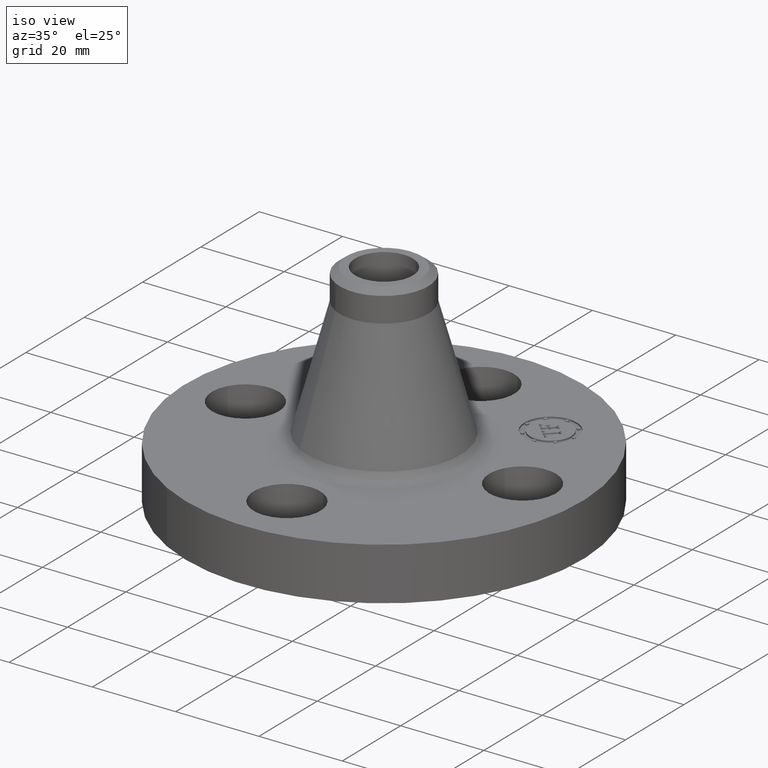
[diagram: clean part render]
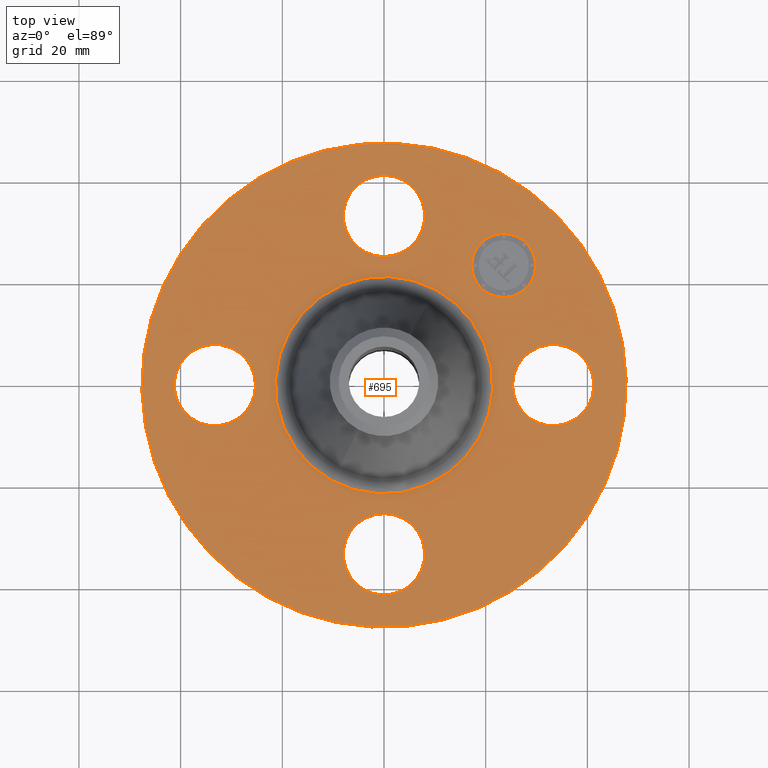
[diagram: tour spotlight — one face highlighted and labeled with its STEP entity id]
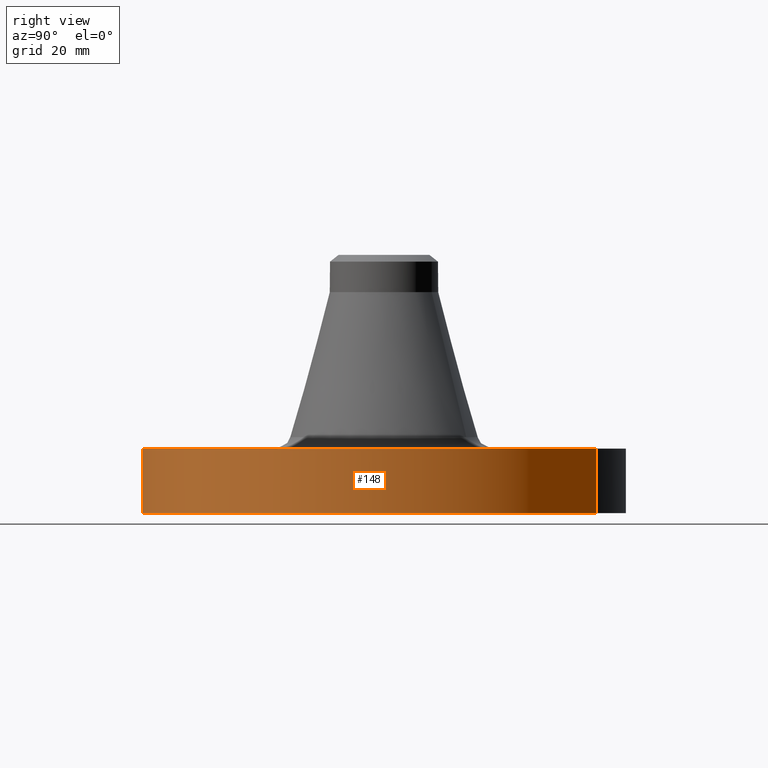
[diagram: tour spotlight — one face highlighted and labeled with its STEP entity id]
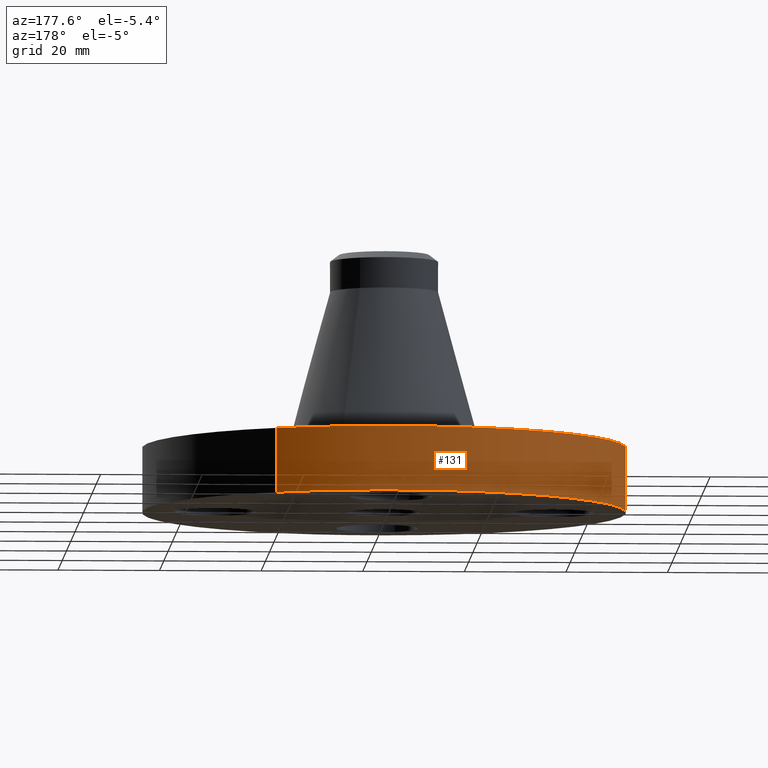
[diagram: tour spotlight — one face highlighted and labeled with its STEP entity id]
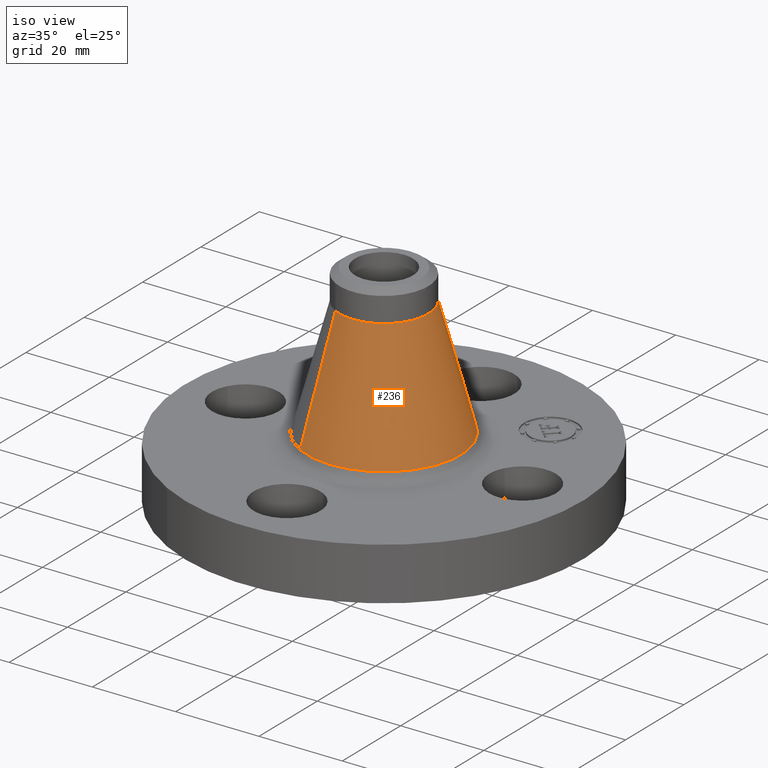
[diagram: tour spotlight — one face highlighted and labeled with its STEP entity id]
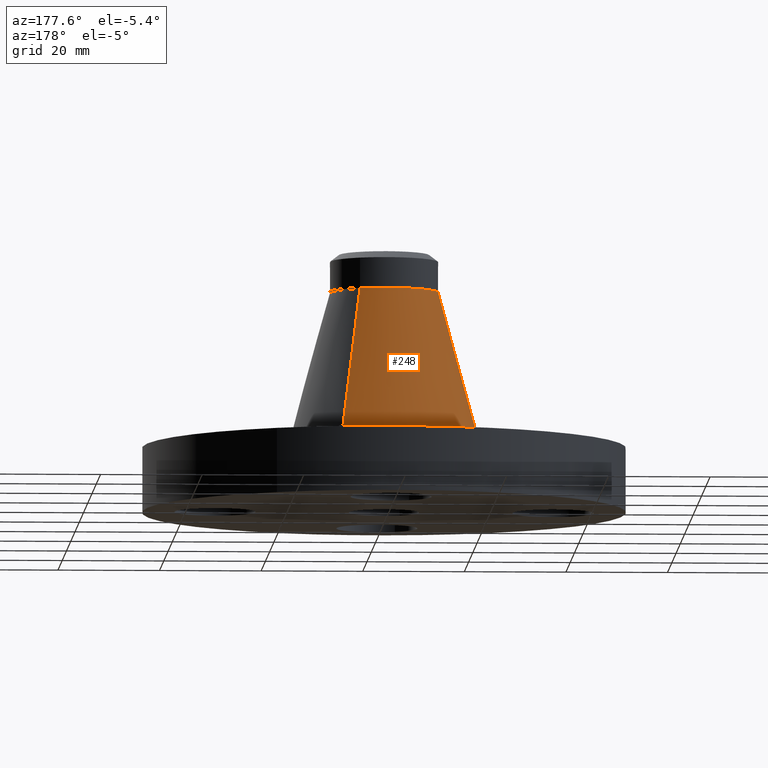
[diagram: tour spotlight — one face highlighted and labeled with its STEP entity id]
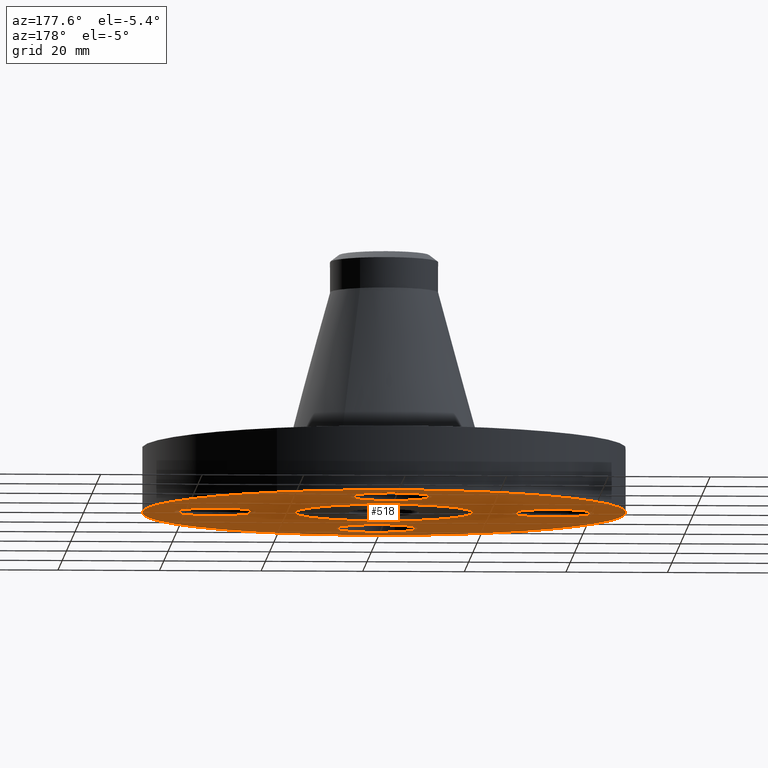
[diagram: tour spotlight — one face highlighted and labeled with its STEP entity id]
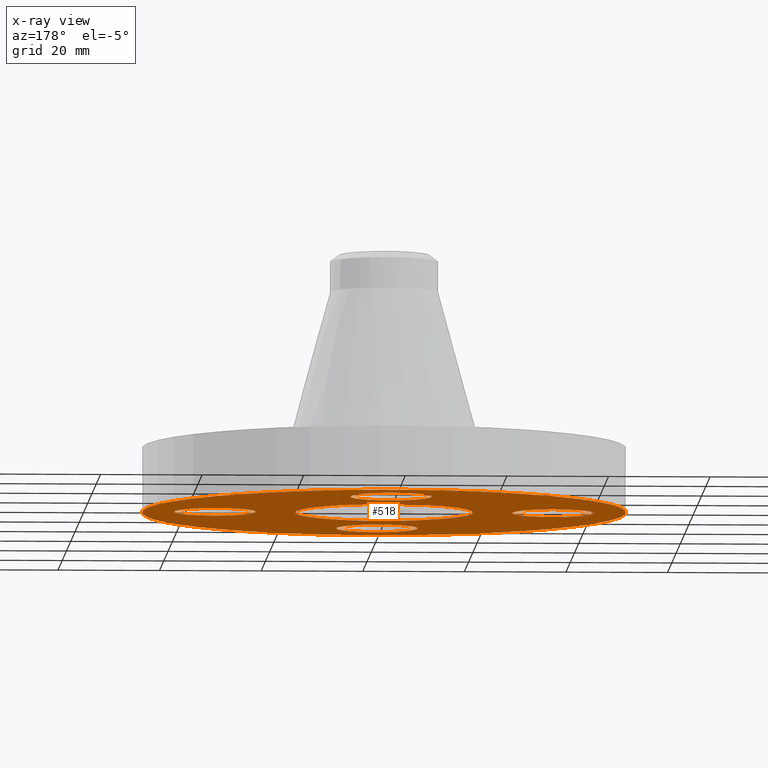
[diagram: x-ray of the same camera — body ghosted, this tour face saturated]
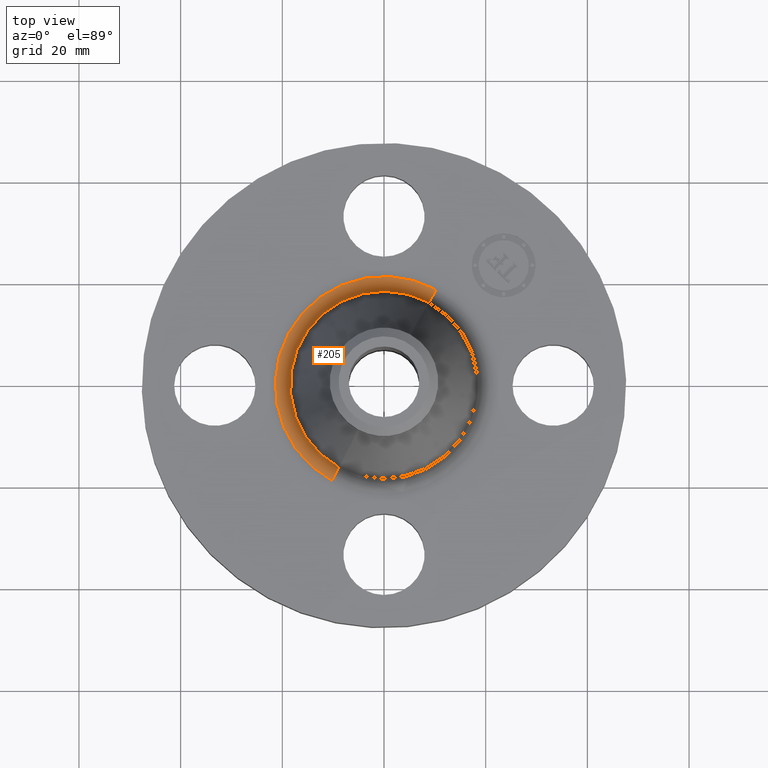
[diagram: tour spotlight — one face highlighted and labeled with its STEP entity id]
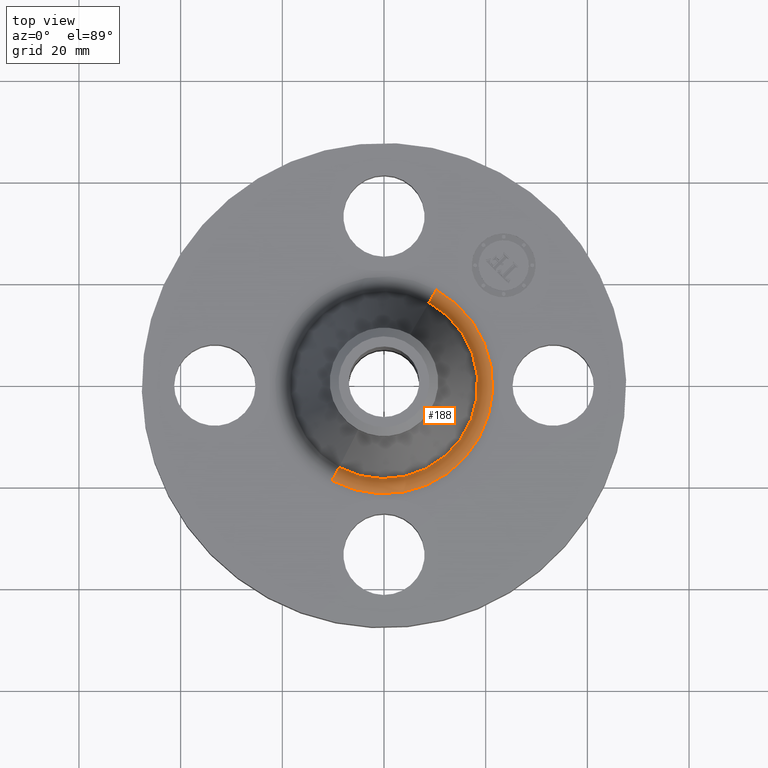
[diagram: tour spotlight — one face highlighted and labeled with its STEP entity id]
A machine part: a face-by-face anatomy tour. The part has 409 B-rep faces; the first image is the clean iso view, then the 8 largest visible faces are spotlighted one at a time (largest first), each with its STEP entity span.

Face 1 — top view, entity #695. In plain terms, the highlighted planar face has unit normal (0, 0, -1).
Definition (entity closure, byte-faithful):
#65=AXIS2_PLACEMENT_3D('Circle Axis2P3D',#63,#64,$) ;
#82=AXIS2_PLACEMENT_3D('Circle Axis2P3D',#80,#81,$) ;
#115=AXIS2_PLACEMENT_3D('Circle Axis2P3D',#113,#114,$) ;
#139=AXIS2_PLACEMENT_3D('Circle Axis2P3D',#137,#138,$) ;
#156=AXIS2_PLACEMENT_3D('Circle Axis2P3D',#154,#155,$) ;
#191=AXIS2_PLACEMENT_3D('Circle Axis2P3D',#189,#190,$) ;
#540=AXIS2_PLACEMENT_3D('Circle Axis2P3D',#538,#539,$) ;
#552=AXIS2_PLACEMENT_3D('Circle Axis2P3D',#550,#551,$) ;
#583=AXIS2_PLACEMENT_3D('Circle Axis2P3D',#581,#582,$) ;
#595=AXIS2_PLACEMENT_3D('Circle Axis2P3D',#593,#594,$) ;
#626=AXIS2_PLACEMENT_3D('Circle Axis2P3D',#624,#625,$) ;
#638=AXIS2_PLACEMENT_3D('Circle Axis2P3D',#636,#637,$) ;
#651=AXIS2_PLACEMENT_3D('Plane Axis2P3D',#648,#649,#650) ;
#679=AXIS2_PLACEMENT_3D('Circle Axis2P3D',#677,#678,$) ;
#688=AXIS2_PLACEMENT_3D('Circle Axis2P3D',#686,#687,$) ;
#46=CARTESIAN_POINT('Vertex',(1.03356149301,0.151019044661,0.500000000002)) ;
#60=CARTESIAN_POINT('Vertex',(1.586438507,-0.151019044661,0.500000000002)) ;
#63=CARTESIAN_POINT('Axis2P3D Location',(1.31000000001,0.,0.500000000002)) ;
#80=CARTESIAN_POINT('Axis2P3D Location',(1.31000000001,0.,0.500000000002)) ;
#110=CARTESIAN_POINT('Vertex',(-0.898922884886,-1.64546730355,0.500000000002)) ;
#113=CARTESIAN_POINT('Axis2P3D Location',(0.,0.,0.500000000002)) ;
#117=CARTESIAN_POINT('Vertex',(0.898922884886,1.64546730355,0.500000000002)) ;
#137=CARTESIAN_POINT('Axis2P3D Location',(0.,0.,0.500000000002)) ;
#154=CARTESIAN_POINT('Axis2P3D Location',(0.,0.,0.500000000002)) ;
#158=CARTESIAN_POINT('Vertex',(0.403524524561,0.738646687619,0.500000000002)) ;
#160=CARTESIAN_POINT('Vertex',(-0.403524524561,-0.738646687619,0.500000000002)) ;
#189=CARTESIAN_POINT('Axis2P3D Location',(0.,0.,0.500000000002)) ;
#528=CARTESIAN_POINT('Vertex',(-0.151019044661,1.03356149301,0.500000000002)) ;
#535=CARTESIAN_POINT('Vertex',(0.151019044661,1.586438507,0.500000000002)) ;
#538=CARTESIAN_POINT('Axis2P3D Location',(-2.40643096033E-016,1.31000000001,0.500000000002)) ;
#550=CARTESIAN_POINT('Axis2P3D Location',(-2.40643096033E-016,1.31000000001,0.500000000002)) ;
#571=CARTESIAN_POINT('Vertex',(-1.03356149301,-0.151019044661,0.500000000002)) ;
#578=CARTESIAN_POINT('Vertex',(-1.586438507,0.151019044661,0.500000000002)) ;
#581=CARTESIAN_POINT('Axis2P3D Location',(-1.31000000001,-1.60428730689E-016,0.500000000002)) ;
#593=CARTESIAN_POINT('Axis2P3D Location',(-1.31000000001,-1.60428730689E-016,0.500000000002)) ;
#614=CARTESIAN_POINT('Vertex',(0.151019044661,-1.03356149301,0.500000000002)) ;
#621=CARTESIAN_POINT('Vertex',(-0.151019044661,-1.586438507,0.500000000002)) ;
#624=CARTESIAN_POINT('Axis2P3D Location',(-1.99526869207E-016,-1.31000000001,0.500000000002)) ;
#636=CARTESIAN_POINT('Axis2P3D Location',(-1.99526869207E-016,-1.31000000001,0.500000000002)) ;
#648=CARTESIAN_POINT('Axis2P3D Location',(0.,1.87500000001,0.500000000002)) ;
#677=CARTESIAN_POINT('Axis2P3D Location',(0.926309883358,0.926309883358,0.500000000002)) ;
#681=CARTESIAN_POINT('Vertex',(0.751300955014,1.1013188117,0.500000000002)) ;
#683=CARTESIAN_POINT('Vertex',(1.1013188117,0.751300955014,0.500000000002)) ;
#686=CARTESIAN_POINT('Axis2P3D Location',(0.926309883358,0.926309883358,0.500000000002)) ;
#64=DIRECTION('Axis2P3D Direction',(0.,-0.,-0.0393700787402)) ;
#81=DIRECTION('Axis2P3D Direction',(0.,-0.,-0.0393700787402)) ;
#114=DIRECTION('Axis2P3D Direction',(0.,0.,-0.0393700787402)) ;
#138=DIRECTION('Axis2P3D Direction',(0.,0.,-0.0393700787402)) ;
#155=DIRECTION('Axis2P3D Direction',(0.,0.,-0.0393700787402)) ;
#190=DIRECTION('Axis2P3D Direction',(0.,0.,-0.0393700787402)) ;
#539=DIRECTION('Axis2P3D Direction',(0.,0.,-0.0393700787402)) ;
#551=DIRECTION('Axis2P3D Direction',(0.,0.,-0.0393700787402)) ;
#582=DIRECTION('Axis2P3D Direction',(-0.,0.,-0.0393700787402)) ;
#594=DIRECTION('Axis2P3D Direction',(-0.,0.,-0.0393700787402)) ;
#625=DIRECTION('Axis2P3D Direction',(0.,-0.,-0.0393700787402)) ;
#637=DIRECTION('Axis2P3D Direction',(0.,-0.,-0.0393700787402)) ;
#649=DIRECTION('Axis2P3D Direction',(0.,0.,-0.0393700787402)) ;
#650=DIRECTION('Axis2P3D XDirection',(0.0393700787402,0.,0.)) ;
#678=DIRECTION('Axis2P3D Direction',(0.,0.,-0.0393700787402)) ;
#687=DIRECTION('Axis2P3D Direction',(0.,0.,-0.0393700787402)) ;
#654=ORIENTED_EDGE('',*,*,#141,.F.) ;
#655=ORIENTED_EDGE('',*,*,#119,.F.) ;
#658=ORIENTED_EDGE('',*,*,#67,.T.) ;
#659=ORIENTED_EDGE('',*,*,#84,.T.) ;
#662=ORIENTED_EDGE('',*,*,#193,.T.) ;
#663=ORIENTED_EDGE('',*,*,#162,.T.) ;
#666=ORIENTED_EDGE('',*,*,#640,.T.) ;
#667=ORIENTED_EDGE('',*,*,#628,.T.) ;
#670=ORIENTED_EDGE('',*,*,#597,.T.) ;
#671=ORIENTED_EDGE('',*,*,#585,.T.) ;
#674=ORIENTED_EDGE('',*,*,#554,.T.) ;
#675=ORIENTED_EDGE('',*,*,#542,.T.) ;
#692=ORIENTED_EDGE('',*,*,#685,.T.) ;
#693=ORIENTED_EDGE('',*,*,#690,.T.) ;
#660=FACE_BOUND('',#657,.T.) ;
#664=FACE_BOUND('',#661,.T.) ;
#668=FACE_BOUND('',#665,.T.) ;
#672=FACE_BOUND('',#669,.T.) ;
#676=FACE_BOUND('',#673,.T.) ;
#694=FACE_BOUND('',#691,.T.) ;
#695=ADVANCED_FACE('PartBody',(#656,#660,#664,#668,#672,#676,#694),#652,.F.) ;
#66=CIRCLE('generated circle',#65,0.315000000001) ;
#83=CIRCLE('generated circle',#82,0.315000000001) ;
#116=CIRCLE('generated circle',#115,1.87500000001) ;
#140=CIRCLE('generated circle',#139,1.87500000001) ;
#157=CIRCLE('generated circle',#156,0.84168341498) ;
#192=CIRCLE('generated circle',#191,0.84168341498) ;
#541=CIRCLE('generated circle',#540,0.315000000001) ;
#553=CIRCLE('generated circle',#552,0.315000000001) ;
#584=CIRCLE('generated circle',#583,0.315000000001) ;
#596=CIRCLE('generated circle',#595,0.315000000001) ;
#627=CIRCLE('generated circle',#626,0.315000000001) ;
#639=CIRCLE('generated circle',#638,0.315000000001) ;
#680=CIRCLE('generated circle',#679,0.247500000001) ;
#689=CIRCLE('generated circle',#688,0.247500000001) ;
#67=EDGE_CURVE('',#47,#61,#66,.T.) ;
#84=EDGE_CURVE('',#61,#47,#83,.T.) ;
#119=EDGE_CURVE('',#111,#118,#116,.T.) ;
#141=EDGE_CURVE('',#118,#111,#140,.T.) ;
#162=EDGE_CURVE('',#159,#161,#157,.T.) ;
#193=EDGE_CURVE('',#161,#159,#192,.T.) ;
#542=EDGE_CURVE('',#529,#536,#541,.T.) ;
#554=EDGE_CURVE('',#536,#529,#553,.T.) ;
#585=EDGE_CURVE('',#572,#579,#584,.T.) ;
#597=EDGE_CURVE('',#579,#572,#596,.T.) ;
#628=EDGE_CURVE('',#615,#622,#627,.T.) ;
#640=EDGE_CURVE('',#622,#615,#639,.T.) ;
#685=EDGE_CURVE('',#682,#684,#680,.T.) ;
#690=EDGE_CURVE('',#684,#682,#689,.T.) ;
#653=EDGE_LOOP('',(#654,#655)) ;
#657=EDGE_LOOP('',(#658,#659)) ;
#661=EDGE_LOOP('',(#662,#663)) ;
#665=EDGE_LOOP('',(#666,#667)) ;
#669=EDGE_LOOP('',(#670,#671)) ;
#673=EDGE_LOOP('',(#674,#675)) ;
#691=EDGE_LOOP('',(#692,#693)) ;
#656=FACE_OUTER_BOUND('',#653,.T.) ;
#652=PLANE('',#651) ;
#47=VERTEX_POINT('',#46) ;
#61=VERTEX_POINT('',#60) ;
#111=VERTEX_POINT('',#110) ;
#118=VERTEX_POINT('',#117) ;
#159=VERTEX_POINT('',#158) ;
#161=VERTEX_POINT('',#160) ;
#529=VERTEX_POINT('',#528) ;
#536=VERTEX_POINT('',#535) ;
#572=VERTEX_POINT('',#571) ;
#579=VERTEX_POINT('',#578) ;
#615=VERTEX_POINT('',#614) ;
#622=VERTEX_POINT('',#621) ;
#682=VERTEX_POINT('',#681) ;
#684=VERTEX_POINT('',#683) ;

Face 2 — right view, entity #148. In plain terms, the highlighted cylindrical surface (partial cylindrical patch) has radius 47.625 mm, axis along (0, 0, -1).
Definition (entity closure, byte-faithful):
#95=AXIS2_PLACEMENT_3D('Cylinder Axis2P3D',#92,#93,#94) ;
#134=AXIS2_PLACEMENT_3D('Circle Axis2P3D',#132,#133,$) ;
#139=AXIS2_PLACEMENT_3D('Circle Axis2P3D',#137,#138,$) ;
#92=CARTESIAN_POINT('Axis2P3D Location',(0.,0.,1.)) ;
#101=CARTESIAN_POINT('Vertex',(-0.898922884886,-1.64546730355,0.)) ;
#103=CARTESIAN_POINT('Vertex',(0.898922884886,1.64546730355,0.)) ;
#106=CARTESIAN_POINT('Line Origine',(-0.898922884886,-1.64546730355,0.250000000001)) ;
#110=CARTESIAN_POINT('Vertex',(-0.898922884886,-1.64546730355,0.500000000002)) ;
#117=CARTESIAN_POINT('Vertex',(0.898922884886,1.64546730355,0.500000000002)) ;
#120=CARTESIAN_POINT('Line Origine',(0.898922884886,1.64546730355,0.250000000001)) ;
#132=CARTESIAN_POINT('Axis2P3D Location',(0.,0.,0.)) ;
#137=CARTESIAN_POINT('Axis2P3D Location',(0.,0.,0.500000000002)) ;
#93=DIRECTION('Axis2P3D Direction',(0.,0.,-0.0393700787402)) ;
#94=DIRECTION('Axis2P3D XDirection',(0.0188750212049,0.0345504945626,0.)) ;
#107=DIRECTION('Vector Direction',(0.,0.,-0.0393700787402)) ;
#121=DIRECTION('Vector Direction',(0.,0.,-0.0393700787402)) ;
#133=DIRECTION('Axis2P3D Direction',(0.,0.,-0.0393700787402)) ;
#138=DIRECTION('Axis2P3D Direction',(0.,0.,-0.0393700787402)) ;
#108=VECTOR('Line Direction',#107,0.0393700787402) ;
#122=VECTOR('Line Direction',#121,0.0393700787402) ;
#143=ORIENTED_EDGE('',*,*,#136,.F.) ;
#144=ORIENTED_EDGE('',*,*,#124,.T.) ;
#145=ORIENTED_EDGE('',*,*,#141,.T.) ;
#146=ORIENTED_EDGE('',*,*,#112,.F.) ;
#148=ADVANCED_FACE('PartBody',(#147),#96,.T.) ;
#135=CIRCLE('generated circle',#134,1.87500000001) ;
#140=CIRCLE('generated circle',#139,1.87500000001) ;
#96=CYLINDRICAL_SURFACE('generated cylinder',#95,1.87500000001) ;
#112=EDGE_CURVE('',#102,#111,#109,.F.) ;
#124=EDGE_CURVE('',#104,#118,#123,.F.) ;
#136=EDGE_CURVE('',#104,#102,#135,.T.) ;
#141=EDGE_CURVE('',#118,#111,#140,.T.) ;
#142=EDGE_LOOP('',(#143,#144,#145,#146)) ;
#147=FACE_OUTER_BOUND('',#142,.T.) ;
#109=LINE('Line',#106,#108) ;
#123=LINE('Line',#120,#122) ;
#102=VERTEX_POINT('',#101) ;
#104=VERTEX_POINT('',#103) ;
#111=VERTEX_POINT('',#110) ;
#118=VERTEX_POINT('',#117) ;

Face 3 — auxiliary view, entity #131. In plain terms, the highlighted cylindrical surface (partial cylindrical patch) has radius 47.625 mm, axis along (0, 0, -1).
Definition (entity closure, byte-faithful):
#95=AXIS2_PLACEMENT_3D('Cylinder Axis2P3D',#92,#93,#94) ;
#99=AXIS2_PLACEMENT_3D('Circle Axis2P3D',#97,#98,$) ;
#115=AXIS2_PLACEMENT_3D('Circle Axis2P3D',#113,#114,$) ;
#92=CARTESIAN_POINT('Axis2P3D Location',(0.,0.,1.)) ;
#97=CARTESIAN_POINT('Axis2P3D Location',(0.,0.,0.)) ;
#101=CARTESIAN_POINT('Vertex',(-0.898922884886,-1.64546730355,0.)) ;
#103=CARTESIAN_POINT('Vertex',(0.898922884886,1.64546730355,0.)) ;
#106=CARTESIAN_POINT('Line Origine',(-0.898922884886,-1.64546730355,0.250000000001)) ;
#110=CARTESIAN_POINT('Vertex',(-0.898922884886,-1.64546730355,0.500000000002)) ;
#113=CARTESIAN_POINT('Axis2P3D Location',(0.,0.,0.500000000002)) ;
#117=CARTESIAN_POINT('Vertex',(0.898922884886,1.64546730355,0.500000000002)) ;
#120=CARTESIAN_POINT('Line Origine',(0.898922884886,1.64546730355,0.250000000001)) ;
#93=DIRECTION('Axis2P3D Direction',(0.,0.,-0.0393700787402)) ;
#94=DIRECTION('Axis2P3D XDirection',(0.0188750212049,0.0345504945626,0.)) ;
#98=DIRECTION('Axis2P3D Direction',(0.,0.,-0.0393700787402)) ;
#107=DIRECTION('Vector Direction',(0.,0.,-0.0393700787402)) ;
#114=DIRECTION('Axis2P3D Direction',(0.,0.,-0.0393700787402)) ;
#121=DIRECTION('Vector Direction',(0.,0.,-0.0393700787402)) ;
#108=VECTOR('Line Direction',#107,0.0393700787402) ;
#122=VECTOR('Line Direction',#121,0.0393700787402) ;
#126=ORIENTED_EDGE('',*,*,#105,.F.) ;
#127=ORIENTED_EDGE('',*,*,#112,.T.) ;
#128=ORIENTED_EDGE('',*,*,#119,.T.) ;
#129=ORIENTED_EDGE('',*,*,#124,.F.) ;
#131=ADVANCED_FACE('PartBody',(#130),#96,.T.) ;
#100=CIRCLE('generated circle',#99,1.87500000001) ;
#116=CIRCLE('generated circle',#115,1.87500000001) ;
#96=CYLINDRICAL_SURFACE('generated cylinder',#95,1.87500000001) ;
#105=EDGE_CURVE('',#102,#104,#100,.T.) ;
#112=EDGE_CURVE('',#102,#111,#109,.F.) ;
#119=EDGE_CURVE('',#111,#118,#116,.T.) ;
#124=EDGE_CURVE('',#104,#118,#123,.F.) ;
#125=EDGE_LOOP('',(#126,#127,#128,#129)) ;
#130=FACE_OUTER_BOUND('',#125,.T.) ;
#109=LINE('Line',#106,#108) ;
#123=LINE('Line',#120,#122) ;
#102=VERTEX_POINT('',#101) ;
#104=VERTEX_POINT('',#103) ;
#111=VERTEX_POINT('',#110) ;
#118=VERTEX_POINT('',#117) ;

Face 4 — iso view, entity #236. In plain terms, the highlighted conical surface has half-angle 15.238 deg.
Definition (entity closure, byte-faithful):
#172=AXIS2_PLACEMENT_3D('Circle Axis2P3D',#170,#171,$) ;
#209=AXIS2_PLACEMENT_3D('Cone Axis2P3D',#206,#207,#208) ;
#220=AXIS2_PLACEMENT_3D('Circle Axis2P3D',#218,#219,$) ;
#167=CARTESIAN_POINT('Vertex',(0.348016189981,0.637039362717,0.5884599252)) ;
#170=CARTESIAN_POINT('Axis2P3D Location',(0.,0.,0.5884599252)) ;
#174=CARTESIAN_POINT('Vertex',(-0.348016189981,-0.637039362717,0.5884599252)) ;
#206=CARTESIAN_POINT('Axis2P3D Location',(0.,0.,1.71140190821)) ;
#211=CARTESIAN_POINT('Line Origine',(0.274687458098,0.502812019356,1.1499309167)) ;
#215=CARTESIAN_POINT('Vertex',(0.201358726215,0.368584675995,1.71140190821)) ;
#218=CARTESIAN_POINT('Axis2P3D Location',(0.,0.,1.71140190821)) ;
#222=CARTESIAN_POINT('Vertex',(-0.201358726215,-0.368584675995,1.71140190821)) ;
#225=CARTESIAN_POINT('Line Origine',(-0.274687458098,-0.502812019356,1.1499309167)) ;
#171=DIRECTION('Axis2P3D Direction',(0.,0.,-0.0393700787402)) ;
#207=DIRECTION('Axis2P3D Direction',(0.,0.,-0.0393700787402)) ;
#208=DIRECTION('Axis2P3D XDirection',(-0.0188750212049,-0.0345504945626,0.)) ;
#212=DIRECTION('Vector Direction',(0.00496099650577,0.00908104319128,-0.0379858693231)) ;
#219=DIRECTION('Axis2P3D Direction',(0.,0.,-0.0393700787402)) ;
#226=DIRECTION('Vector Direction',(-0.00496099650577,-0.00908104319128,-0.0379858693231)) ;
#213=VECTOR('Line Direction',#212,0.0393700787402) ;
#227=VECTOR('Line Direction',#226,0.0393700787402) ;
#231=ORIENTED_EDGE('',*,*,#176,.F.) ;
#232=ORIENTED_EDGE('',*,*,#217,.T.) ;
#233=ORIENTED_EDGE('',*,*,#224,.T.) ;
#234=ORIENTED_EDGE('',*,*,#229,.F.) ;
#236=ADVANCED_FACE('PartBody',(#235),#210,.T.) ;
#173=CIRCLE('generated circle',#172,0.725902485282) ;
#221=CIRCLE('generated circle',#220,0.420000000002) ;
#210=CONICAL_SURFACE('Cone',#209,0.420000000002,0.265958259364) ;
#176=EDGE_CURVE('',#168,#175,#173,.T.) ;
#217=EDGE_CURVE('',#168,#216,#214,.F.) ;
#224=EDGE_CURVE('',#216,#223,#221,.T.) ;
#229=EDGE_CURVE('',#175,#223,#228,.F.) ;
#230=EDGE_LOOP('',(#231,#232,#233,#234)) ;
#235=FACE_OUTER_BOUND('',#230,.T.) ;
#214=LINE('Line',#211,#213) ;
#228=LINE('Line',#225,#227) ;
#168=VERTEX_POINT('',#167) ;
#175=VERTEX_POINT('',#174) ;
#216=VERTEX_POINT('',#215) ;
#223=VERTEX_POINT('',#222) ;

Face 5 — auxiliary view, entity #248. In plain terms, the highlighted conical surface has half-angle 15.238 deg.
Definition (entity closure, byte-faithful):
#196=AXIS2_PLACEMENT_3D('Circle Axis2P3D',#194,#195,$) ;
#209=AXIS2_PLACEMENT_3D('Cone Axis2P3D',#206,#207,#208) ;
#239=AXIS2_PLACEMENT_3D('Circle Axis2P3D',#237,#238,$) ;
#167=CARTESIAN_POINT('Vertex',(0.348016189981,0.637039362717,0.5884599252)) ;
#174=CARTESIAN_POINT('Vertex',(-0.348016189981,-0.637039362717,0.5884599252)) ;
#194=CARTESIAN_POINT('Axis2P3D Location',(0.,0.,0.5884599252)) ;
#206=CARTESIAN_POINT('Axis2P3D Location',(0.,0.,1.71140190821)) ;
#211=CARTESIAN_POINT('Line Origine',(0.274687458098,0.502812019356,1.1499309167)) ;
#215=CARTESIAN_POINT('Vertex',(0.201358726215,0.368584675995,1.71140190821)) ;
#222=CARTESIAN_POINT('Vertex',(-0.201358726215,-0.368584675995,1.71140190821)) ;
#225=CARTESIAN_POINT('Line Origine',(-0.274687458098,-0.502812019356,1.1499309167)) ;
#237=CARTESIAN_POINT('Axis2P3D Location',(0.,0.,1.71140190821)) ;
#195=DIRECTION('Axis2P3D Direction',(0.,0.,-0.0393700787402)) ;
#207=DIRECTION('Axis2P3D Direction',(0.,0.,-0.0393700787402)) ;
#208=DIRECTION('Axis2P3D XDirection',(-0.0188750212049,-0.0345504945626,0.)) ;
#212=DIRECTION('Vector Direction',(0.00496099650577,0.00908104319128,-0.0379858693231)) ;
#226=DIRECTION('Vector Direction',(-0.00496099650577,-0.00908104319128,-0.0379858693231)) ;
#238=DIRECTION('Axis2P3D Direction',(0.,0.,-0.0393700787402)) ;
#213=VECTOR('Line Direction',#212,0.0393700787402) ;
#227=VECTOR('Line Direction',#226,0.0393700787402) ;
#243=ORIENTED_EDGE('',*,*,#198,.F.) ;
#244=ORIENTED_EDGE('',*,*,#229,.T.) ;
#245=ORIENTED_EDGE('',*,*,#241,.T.) ;
#246=ORIENTED_EDGE('',*,*,#217,.F.) ;
#248=ADVANCED_FACE('PartBody',(#247),#210,.T.) ;
#197=CIRCLE('generated circle',#196,0.725902485282) ;
#240=CIRCLE('generated circle',#239,0.420000000002) ;
#210=CONICAL_SURFACE('Cone',#209,0.420000000002,0.265958259364) ;
#198=EDGE_CURVE('',#175,#168,#197,.T.) ;
#217=EDGE_CURVE('',#168,#216,#214,.F.) ;
#229=EDGE_CURVE('',#175,#223,#228,.F.) ;
#241=EDGE_CURVE('',#223,#216,#240,.T.) ;
#242=EDGE_LOOP('',(#243,#244,#245,#246)) ;
#247=FACE_OUTER_BOUND('',#242,.T.) ;
#214=LINE('Line',#211,#213) ;
#228=LINE('Line',#225,#227) ;
#168=VERTEX_POINT('',#167) ;
#175=VERTEX_POINT('',#174) ;
#216=VERTEX_POINT('',#215) ;
#223=VERTEX_POINT('',#222) ;

Face 6 — auxiliary view, entity #518. An x-ray twin of the same camera follows (body ghosted, this face saturated) — the face is partly hidden behind the body. In plain terms, the highlighted planar face has unit normal (0, 0, -1).
Definition (entity closure, byte-faithful):
#51=AXIS2_PLACEMENT_3D('Circle Axis2P3D',#49,#50,$) ;
#77=AXIS2_PLACEMENT_3D('Circle Axis2P3D',#75,#76,$) ;
#99=AXIS2_PLACEMENT_3D('Circle Axis2P3D',#97,#98,$) ;
#134=AXIS2_PLACEMENT_3D('Circle Axis2P3D',#132,#133,$) ;
#427=AXIS2_PLACEMENT_3D('Plane Axis2P3D',#424,#425,#426) ;
#431=AXIS2_PLACEMENT_3D('Circle Axis2P3D',#429,#430,$) ;
#440=AXIS2_PLACEMENT_3D('Circle Axis2P3D',#438,#439,$) ;
#466=AXIS2_PLACEMENT_3D('Circle Axis2P3D',#464,#465,$) ;
#475=AXIS2_PLACEMENT_3D('Circle Axis2P3D',#473,#474,$) ;
#484=AXIS2_PLACEMENT_3D('Circle Axis2P3D',#482,#483,$) ;
#493=AXIS2_PLACEMENT_3D('Circle Axis2P3D',#491,#492,$) ;
#502=AXIS2_PLACEMENT_3D('Circle Axis2P3D',#500,#501,$) ;
#511=AXIS2_PLACEMENT_3D('Circle Axis2P3D',#509,#510,$) ;
#44=CARTESIAN_POINT('Vertex',(1.03356149301,0.151019044661,0.)) ;
#49=CARTESIAN_POINT('Axis2P3D Location',(1.31000000001,0.,0.)) ;
#53=CARTESIAN_POINT('Vertex',(1.586438507,-0.151019044661,0.)) ;
#75=CARTESIAN_POINT('Axis2P3D Location',(1.31000000001,0.,0.)) ;
#97=CARTESIAN_POINT('Axis2P3D Location',(0.,0.,0.)) ;
#101=CARTESIAN_POINT('Vertex',(-0.898922884886,-1.64546730355,0.)) ;
#103=CARTESIAN_POINT('Vertex',(0.898922884886,1.64546730355,0.)) ;
#132=CARTESIAN_POINT('Axis2P3D Location',(0.,0.,0.)) ;
#424=CARTESIAN_POINT('Axis2P3D Location',(0.,0.273000000001,0.)) ;
#429=CARTESIAN_POINT('Axis2P3D Location',(0.,0.,0.)) ;
#433=CARTESIAN_POINT('Vertex',(-0.330803621638,-0.605531967707,0.)) ;
#435=CARTESIAN_POINT('Vertex',(0.330803621638,0.605531967707,0.)) ;
#438=CARTESIAN_POINT('Axis2P3D Location',(0.,0.,0.)) ;
#464=CARTESIAN_POINT('Axis2P3D Location',(-1.04902962957E-016,-1.31000000001,0.)) ;
#468=CARTESIAN_POINT('Vertex',(0.151019044661,-1.03356149301,0.)) ;
#470=CARTESIAN_POINT('Vertex',(-0.151019044661,-1.586438507,0.)) ;
#473=CARTESIAN_POINT('Axis2P3D Location',(-1.74838271595E-016,-1.31000000001,0.)) ;
#482=CARTESIAN_POINT('Axis2P3D Location',(-1.31000000001,-1.39870617276E-016,0.)) ;
#486=CARTESIAN_POINT('Vertex',(-1.03356149301,-0.151019044661,0.)) ;
#488=CARTESIAN_POINT('Vertex',(-1.586438507,0.151019044661,0.)) ;
#491=CARTESIAN_POINT('Axis2P3D Location',(-1.31000000001,-6.99353086378E-017,0.)) ;
#500=CARTESIAN_POINT('Axis2P3D Location',(-3.1470888887E-016,1.31000000001,0.)) ;
#504=CARTESIAN_POINT('Vertex',(-0.151019044661,1.03356149301,0.)) ;
#506=CARTESIAN_POINT('Vertex',(0.151019044661,1.586438507,0.)) ;
#509=CARTESIAN_POINT('Axis2P3D Location',(-2.79741234551E-016,1.31000000001,0.)) ;
#50=DIRECTION('Axis2P3D Direction',(0.,-0.,-0.0393700787402)) ;
#76=DIRECTION('Axis2P3D Direction',(0.,-0.,-0.0393700787402)) ;
#98=DIRECTION('Axis2P3D Direction',(0.,0.,-0.0393700787402)) ;
#133=DIRECTION('Axis2P3D Direction',(0.,0.,-0.0393700787402)) ;
#425=DIRECTION('Axis2P3D Direction',(0.,0.,-0.0393700787402)) ;
#426=DIRECTION('Axis2P3D XDirection',(0.0393700787402,0.,0.)) ;
#430=DIRECTION('Axis2P3D Direction',(0.,0.,-0.0393700787402)) ;
#439=DIRECTION('Axis2P3D Direction',(0.,0.,-0.0393700787402)) ;
#465=DIRECTION('Axis2P3D Direction',(0.,0.,-0.0393700787402)) ;
#474=DIRECTION('Axis2P3D Direction',(0.,0.,-0.0393700787402)) ;
#483=DIRECTION('Axis2P3D Direction',(0.,0.,-0.0393700787402)) ;
#492=DIRECTION('Axis2P3D Direction',(0.,0.,-0.0393700787402)) ;
#501=DIRECTION('Axis2P3D Direction',(0.,0.,-0.0393700787402)) ;
#510=DIRECTION('Axis2P3D Direction',(0.,0.,-0.0393700787402)) ;
#453=ORIENTED_EDGE('',*,*,#105,.T.) ;
#454=ORIENTED_EDGE('',*,*,#136,.T.) ;
#457=ORIENTED_EDGE('',*,*,#79,.F.) ;
#458=ORIENTED_EDGE('',*,*,#55,.F.) ;
#461=ORIENTED_EDGE('',*,*,#442,.F.) ;
#462=ORIENTED_EDGE('',*,*,#437,.F.) ;
#479=ORIENTED_EDGE('',*,*,#472,.F.) ;
#480=ORIENTED_EDGE('',*,*,#477,.F.) ;
#497=ORIENTED_EDGE('',*,*,#490,.F.) ;
#498=ORIENTED_EDGE('',*,*,#495,.F.) ;
#515=ORIENTED_EDGE('',*,*,#508,.F.) ;
#516=ORIENTED_EDGE('',*,*,#513,.F.) ;
#459=FACE_BOUND('',#456,.T.) ;
#463=FACE_BOUND('',#460,.T.) ;
#481=FACE_BOUND('',#478,.T.) ;
#499=FACE_BOUND('',#496,.T.) ;
#517=FACE_BOUND('',#514,.T.) ;
#518=ADVANCED_FACE('PartBody',(#455,#459,#463,#481,#499,#517),#428,.T.) ;
#52=CIRCLE('generated circle',#51,0.315000000001) ;
#78=CIRCLE('generated circle',#77,0.315000000001) ;
#100=CIRCLE('generated circle',#99,1.87500000001) ;
#135=CIRCLE('generated circle',#134,1.87500000001) ;
#432=CIRCLE('generated circle',#431,0.690000000003) ;
#441=CIRCLE('generated circle',#440,0.690000000003) ;
#467=CIRCLE('generated circle',#466,0.315000000001) ;
#476=CIRCLE('generated circle',#475,0.315000000001) ;
#485=CIRCLE('generated circle',#484,0.315000000001) ;
#494=CIRCLE('generated circle',#493,0.315000000001) ;
#503=CIRCLE('generated circle',#502,0.315000000001) ;
#512=CIRCLE('generated circle',#511,0.315000000001) ;
#55=EDGE_CURVE('',#45,#54,#52,.T.) ;
#79=EDGE_CURVE('',#54,#45,#78,.T.) ;
#105=EDGE_CURVE('',#102,#104,#100,.T.) ;
#136=EDGE_CURVE('',#104,#102,#135,.T.) ;
#437=EDGE_CURVE('',#434,#436,#432,.T.) ;
#442=EDGE_CURVE('',#436,#434,#441,.T.) ;
#472=EDGE_CURVE('',#469,#471,#467,.T.) ;
#477=EDGE_CURVE('',#471,#469,#476,.T.) ;
#490=EDGE_CURVE('',#487,#489,#485,.T.) ;
#495=EDGE_CURVE('',#489,#487,#494,.T.) ;
#508=EDGE_CURVE('',#505,#507,#503,.T.) ;
#513=EDGE_CURVE('',#507,#505,#512,.T.) ;
#452=EDGE_LOOP('',(#453,#454)) ;
#456=EDGE_LOOP('',(#457,#458)) ;
#460=EDGE_LOOP('',(#461,#462)) ;
#478=EDGE_LOOP('',(#479,#480)) ;
#496=EDGE_LOOP('',(#497,#498)) ;
#514=EDGE_LOOP('',(#515,#516)) ;
#455=FACE_OUTER_BOUND('',#452,.T.) ;
#428=PLANE('',#427) ;
#45=VERTEX_POINT('',#44) ;
#54=VERTEX_POINT('',#53) ;
#102=VERTEX_POINT('',#101) ;
#104=VERTEX_POINT('',#103) ;
#434=VERTEX_POINT('',#433) ;
#436=VERTEX_POINT('',#435) ;
#469=VERTEX_POINT('',#468) ;
#471=VERTEX_POINT('',#470) ;
#487=VERTEX_POINT('',#486) ;
#489=VERTEX_POINT('',#488) ;
#505=VERTEX_POINT('',#504) ;
#507=VERTEX_POINT('',#506) ;

Face 7 — top view, entity #205. In plain terms, the highlighted toroidal blend (fillet) surface has major radius 21.3788 mm and minor (blend) radius 3.048 mm.
Definition (entity closure, byte-faithful):
#152=AXIS2_PLACEMENT_3D('Torus Axis2P3D',#149,#150,#151) ;
#165=AXIS2_PLACEMENT_3D('Circle Axis2P3D',#163,#164,$) ;
#179=AXIS2_PLACEMENT_3D('Circle Axis2P3D',#177,#178,$) ;
#191=AXIS2_PLACEMENT_3D('Circle Axis2P3D',#189,#190,$) ;
#196=AXIS2_PLACEMENT_3D('Circle Axis2P3D',#194,#195,$) ;
#149=CARTESIAN_POINT('Axis2P3D Location',(0.,0.,0.620000000002)) ;
#158=CARTESIAN_POINT('Vertex',(0.403524524561,0.738646687619,0.500000000002)) ;
#160=CARTESIAN_POINT('Vertex',(-0.403524524561,-0.738646687619,0.500000000002)) ;
#163=CARTESIAN_POINT('Axis2P3D Location',(0.403524524561,0.738646687619,0.620000000002)) ;
#167=CARTESIAN_POINT('Vertex',(0.348016189981,0.637039362717,0.5884599252)) ;
#174=CARTESIAN_POINT('Vertex',(-0.348016189981,-0.637039362717,0.5884599252)) ;
#177=CARTESIAN_POINT('Axis2P3D Location',(-0.403524524561,-0.738646687619,0.620000000002)) ;
#189=CARTESIAN_POINT('Axis2P3D Location',(0.,0.,0.500000000002)) ;
#194=CARTESIAN_POINT('Axis2P3D Location',(0.,0.,0.5884599252)) ;
#150=DIRECTION('Axis2P3D Direction',(0.,0.,-0.0393700787402)) ;
#151=DIRECTION('Axis2P3D XDirection',(-0.0188750212049,-0.0345504945626,0.)) ;
#164=DIRECTION('Axis2P3D Direction',(-0.0345504945626,0.0188750212049,0.)) ;
#178=DIRECTION('Axis2P3D Direction',(0.0345504945626,-0.0188750212049,0.)) ;
#190=DIRECTION('Axis2P3D Direction',(0.,0.,-0.0393700787402)) ;
#195=DIRECTION('Axis2P3D Direction',(0.,0.,-0.0393700787402)) ;
#200=ORIENTED_EDGE('',*,*,#193,.F.) ;
#201=ORIENTED_EDGE('',*,*,#181,.T.) ;
#202=ORIENTED_EDGE('',*,*,#198,.T.) ;
#203=ORIENTED_EDGE('',*,*,#169,.F.) ;
#205=ADVANCED_FACE('PartBody',(#204),#153,.F.) ;
#166=CIRCLE('generated circle',#165,0.12) ;
#180=CIRCLE('generated circle',#179,0.12) ;
#192=CIRCLE('generated circle',#191,0.84168341498) ;
#197=CIRCLE('generated circle',#196,0.725902485282) ;
#153=TOROIDAL_SURFACE('homeo Torus',#152,0.84168341498,0.12) ;
#169=EDGE_CURVE('',#159,#168,#166,.T.) ;
#181=EDGE_CURVE('',#161,#175,#180,.T.) ;
#193=EDGE_CURVE('',#161,#159,#192,.T.) ;
#198=EDGE_CURVE('',#175,#168,#197,.T.) ;
#199=EDGE_LOOP('',(#200,#201,#202,#203)) ;
#204=FACE_OUTER_BOUND('',#199,.T.) ;
#159=VERTEX_POINT('',#158) ;
#161=VERTEX_POINT('',#160) ;
#168=VERTEX_POINT('',#167) ;
#175=VERTEX_POINT('',#174) ;

Face 8 — top view, entity #188. In plain terms, the highlighted toroidal blend (fillet) surface has major radius 21.3788 mm and minor (blend) radius 3.048 mm.
Definition (entity closure, byte-faithful):
#152=AXIS2_PLACEMENT_3D('Torus Axis2P3D',#149,#150,#151) ;
#156=AXIS2_PLACEMENT_3D('Circle Axis2P3D',#154,#155,$) ;
#165=AXIS2_PLACEMENT_3D('Circle Axis2P3D',#163,#164,$) ;
#172=AXIS2_PLACEMENT_3D('Circle Axis2P3D',#170,#171,$) ;
#179=AXIS2_PLACEMENT_3D('Circle Axis2P3D',#177,#178,$) ;
#149=CARTESIAN_POINT('Axis2P3D Location',(0.,0.,0.620000000002)) ;
#154=CARTESIAN_POINT('Axis2P3D Location',(0.,0.,0.500000000002)) ;
#158=CARTESIAN_POINT('Vertex',(0.403524524561,0.738646687619,0.500000000002)) ;
#160=CARTESIAN_POINT('Vertex',(-0.403524524561,-0.738646687619,0.500000000002)) ;
#163=CARTESIAN_POINT('Axis2P3D Location',(0.403524524561,0.738646687619,0.620000000002)) ;
#167=CARTESIAN_POINT('Vertex',(0.348016189981,0.637039362717,0.5884599252)) ;
#170=CARTESIAN_POINT('Axis2P3D Location',(0.,0.,0.5884599252)) ;
#174=CARTESIAN_POINT('Vertex',(-0.348016189981,-0.637039362717,0.5884599252)) ;
#177=CARTESIAN_POINT('Axis2P3D Location',(-0.403524524561,-0.738646687619,0.620000000002)) ;
#150=DIRECTION('Axis2P3D Direction',(0.,0.,-0.0393700787402)) ;
#151=DIRECTION('Axis2P3D XDirection',(-0.0188750212049,-0.0345504945626,0.)) ;
#155=DIRECTION('Axis2P3D Direction',(0.,0.,-0.0393700787402)) ;
#164=DIRECTION('Axis2P3D Direction',(-0.0345504945626,0.0188750212049,0.)) ;
#171=DIRECTION('Axis2P3D Direction',(0.,0.,-0.0393700787402)) ;
#178=DIRECTION('Axis2P3D Direction',(0.0345504945626,-0.0188750212049,0.)) ;
#183=ORIENTED_EDGE('',*,*,#162,.F.) ;
#184=ORIENTED_EDGE('',*,*,#169,.T.) ;
#185=ORIENTED_EDGE('',*,*,#176,.T.) ;
#186=ORIENTED_EDGE('',*,*,#181,.F.) ;
#188=ADVANCED_FACE('PartBody',(#187),#153,.F.) ;
#157=CIRCLE('generated circle',#156,0.84168341498) ;
#166=CIRCLE('generated circle',#165,0.12) ;
#173=CIRCLE('generated circle',#172,0.725902485282) ;
#180=CIRCLE('generated circle',#179,0.12) ;
#153=TOROIDAL_SURFACE('homeo Torus',#152,0.84168341498,0.12) ;
#162=EDGE_CURVE('',#159,#161,#157,.T.) ;
#169=EDGE_CURVE('',#159,#168,#166,.T.) ;
#176=EDGE_CURVE('',#168,#175,#173,.T.) ;
#181=EDGE_CURVE('',#161,#175,#180,.T.) ;
#182=EDGE_LOOP('',(#183,#184,#185,#186)) ;
#187=FACE_OUTER_BOUND('',#182,.T.) ;
#159=VERTEX_POINT('',#158) ;
#161=VERTEX_POINT('',#160) ;
#168=VERTEX_POINT('',#167) ;
#175=VERTEX_POINT('',#174) ;